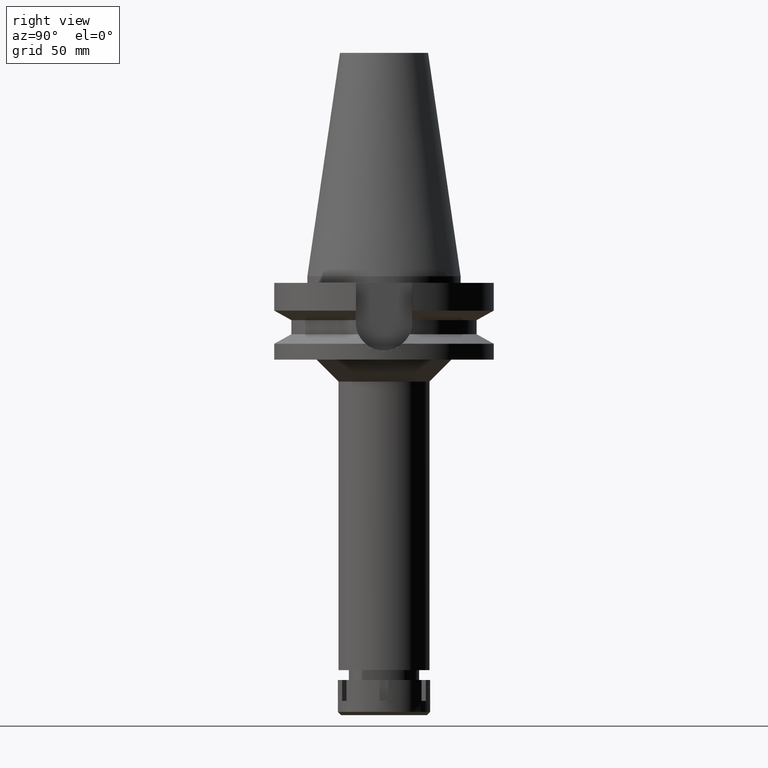
[diagram: clean part render]
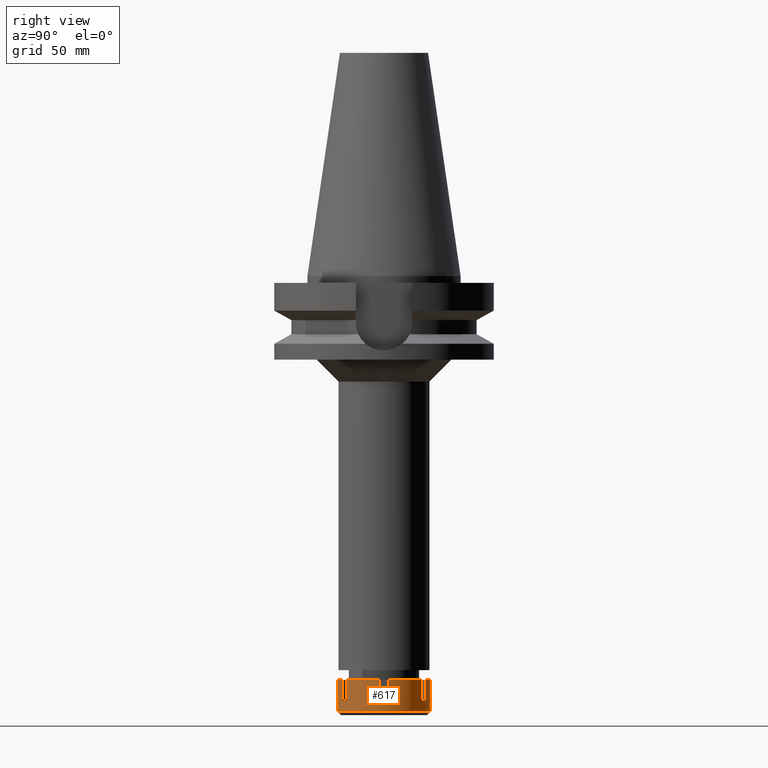
[diagram: same view with one face highlighted and labeled with its STEP entity id]
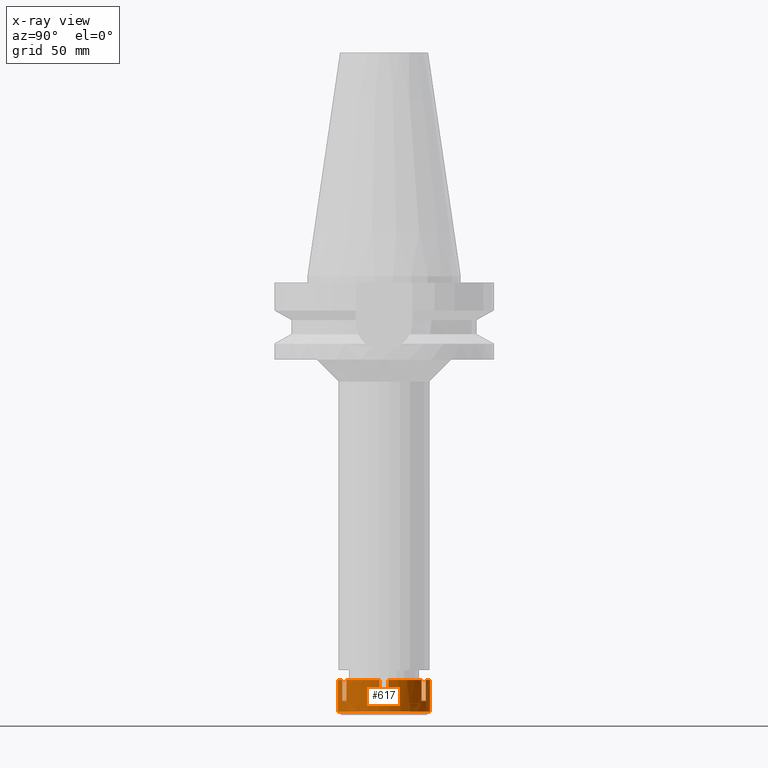
[diagram: x-ray of the same camera — body ghosted, the highlighted face saturated]
A machine part, right view. The second image highlights one B-rep face of the part: STEP entity #617.
The next image is the same camera in x-ray: the body ghosted, the highlighted face saturated — about 0% of this face is hidden behind the body in this view.
In plain terms, the highlighted cylindrical surface (partial cylindrical patch) has radius 21 mm, axis along (0, 0, -1).
Its self-contained STEP definition (entity closure, byte-faithful):
#16 = VERTEX_POINT ( 'NONE', #3208 ) ;
#70 = EDGE_CURVE ( 'NONE', #1454, #3551, #1508, .T. ) ;
#119 = CARTESIAN_POINT ( 'NONE',  ( 0.0000000000000000000, 0.0000000000000000000, -14.50000000000000000 ) ) ;
#198 = CARTESIAN_POINT ( 'NONE',  ( 0.0000000000000000000, 21.00000000000000000, -14.50000000000000000 ) ) ;
#201 = EDGE_CURVE ( 'NONE', #2813, #1130, #2110, .T. ) ;
#214 = CARTESIAN_POINT ( 'NONE',  ( 12.18432328774999895, -17.10386699022999935, 0.0000000000000000000 ) ) ;
#232 = CARTESIAN_POINT ( 'NONE',  ( 0.0000000000000000000, 21.00000000000000000, 0.0000000000000000000 ) ) ;
#287 = VECTOR ( 'NONE', #2916, 1000.000000000000000 ) ;
#316 = CARTESIAN_POINT ( 'NONE',  ( 0.0000000000000000000, 21.00000000000000000, 0.0000000000000000000 ) ) ;
#330 = AXIS2_PLACEMENT_3D ( 'NONE', #1938, #3111, #2530 ) ;
#338 = AXIS2_PLACEMENT_3D ( 'NONE', #497, #423, #1569 ) ;
#340 = EDGE_CURVE ( 'NONE', #1711, #1068, #1155, .T. ) ;
#361 = EDGE_CURVE ( 'NONE', #3112, #3315, #3674, .T. ) ;
#415 = CARTESIAN_POINT ( 'NONE',  ( 20.90454496036999998, -2.000000000000000000, -9.500000000000000000 ) ) ;
#423 = DIRECTION ( 'NONE',  ( 0.0000000000000000000, 0.0000000000000000000, -1.000000000000000000 ) ) ;
#464 = AXIS2_PLACEMENT_3D ( 'NONE', #2307, #2276, #2290 ) ;
#485 = DIRECTION ( 'NONE',  ( 0.0000000000000000000, 0.0000000000000000000, 1.000000000000000000 ) ) ;
#497 = CARTESIAN_POINT ( 'NONE',  ( 0.0000000000000000000, 0.0000000000000000000, -9.500000000000000000 ) ) ;
#502 = LINE ( 'NONE', #2464, #838 ) ;
#522 = AXIS2_PLACEMENT_3D ( 'NONE', #2109, #1542, #3522 ) ;
#586 = VERTEX_POINT ( 'NONE', #415 ) ;
#599 = ORIENTED_EDGE ( 'NONE', *, *, #70, .F. ) ;
#600 = CARTESIAN_POINT ( 'NONE',  ( 12.18432328774999895, -17.10386699022999935, -9.500000000000000000 ) ) ;
#617 = ADVANCED_FACE ( 'NONE', ( #3290 ), #2428, .T. ) ;
#624 = CIRCLE ( 'NONE', #522, 21.00000000000000711 ) ;
#678 = EDGE_CURVE ( 'NONE', #1463, #2628, #1898, .T. ) ;
#702 = CARTESIAN_POINT ( 'NONE',  ( 8.720221672615998898, 19.10386699022999935, -9.500000000000000000 ) ) ;
#734 = CARTESIAN_POINT ( 'NONE',  ( 20.90454496036999998, -2.000000000000000000, 0.0000000000000000000 ) ) ;
#756 = VERTEX_POINT ( 'NONE', #214 ) ;
#811 = CARTESIAN_POINT ( 'NONE',  ( 0.0000000000000000000, -21.00000000000000000, -14.50000000000000000 ) ) ;
#814 = CIRCLE ( 'NONE', #2897, 20.99999999999999645 ) ;
#835 = CIRCLE ( 'NONE', #2317, 21.00000000000000000 ) ;
#838 = VECTOR ( 'NONE', #485, 1000.000000000000000 ) ;
#874 = CIRCLE ( 'NONE', #1480, 21.00000000000000711 ) ;
#926 = ORIENTED_EDGE ( 'NONE', *, *, #3306, .T. ) ;
#977 = ORIENTED_EDGE ( 'NONE', *, *, #201, .T. ) ;
#1001 = DIRECTION ( 'NONE',  ( 0.5802058708454290725, 0.8144698566776411575, 0.0000000000000000000 ) ) ;
#1021 = VECTOR ( 'NONE', #3400, 1000.000000000000000 ) ;
#1027 = DIRECTION ( 'NONE',  ( 0.0000000000000000000, 0.0000000000000000000, -1.000000000000000000 ) ) ;
#1068 = VERTEX_POINT ( 'NONE', #198 ) ;
#1076 = CIRCLE ( 'NONE', #464, 21.00000000000000000 ) ;
#1119 = VECTOR ( 'NONE', #1218, 1000.000000000000000 ) ;
#1125 = DIRECTION ( 'NONE',  ( 0.4152486510768949035, 0.9097079519157886818, 0.0000000000000000000 ) ) ;
#1128 = EDGE_CURVE ( 'NONE', #3112, #586, #1725, .T. ) ;
#1130 = VERTEX_POINT ( 'NONE', #811 ) ;
#1138 = CARTESIAN_POINT ( 'NONE',  ( 20.90454496036999998, 2.000000000000000000, -9.500000000000000000 ) ) ;
#1155 = LINE ( 'NONE', #316, #2607 ) ;
#1173 = CARTESIAN_POINT ( 'NONE',  ( 8.720221672615000585, -19.10386699022999935, 0.0000000000000000000 ) ) ;
#1218 = DIRECTION ( 'NONE',  ( 0.0000000000000000000, 0.0000000000000000000, 1.000000000000000000 ) ) ;
#1221 = CARTESIAN_POINT ( 'NONE',  ( 8.720221672615000585, 19.10386699022999935, 0.0000000000000000000 ) ) ;
#1289 = DIRECTION ( 'NONE',  ( 0.0000000000000000000, 0.0000000000000000000, -1.000000000000000000 ) ) ;
#1389 = VERTEX_POINT ( 'NONE', #600 ) ;
#1454 = VERTEX_POINT ( 'NONE', #2456 ) ;
#1463 = VERTEX_POINT ( 'NONE', #2673 ) ;
#1480 = AXIS2_PLACEMENT_3D ( 'NONE', #2877, #2590, #3184 ) ;
#1508 = LINE ( 'NONE', #1173, #287 ) ;
#1523 = DIRECTION ( 'NONE',  ( 0.0000000000000000000, 0.0000000000000000000, -1.000000000000000000 ) ) ;
#1529 = LINE ( 'NONE', #3191, #1119 ) ;
#1542 = DIRECTION ( 'NONE',  ( 0.0000000000000000000, 0.0000000000000000000, -1.000000000000000000 ) ) ;
#1550 = VECTOR ( 'NONE', #1289, 1000.000000000000000 ) ;
#1569 = DIRECTION ( 'NONE',  ( 0.9954545219222313834, 0.09523809523810303213, 0.0000000000000000000 ) ) ;
#1639 = DIRECTION ( 'NONE',  ( 0.0000000000000000000, 0.0000000000000000000, -1.000000000000000000 ) ) ;
#1646 = ORIENTED_EDGE ( 'NONE', *, *, #340, .F. ) ;
#1711 = VERTEX_POINT ( 'NONE', #232 ) ;
#1725 = CIRCLE ( 'NONE', #338, 20.99999999999999289 ) ;
#1731 = DIRECTION ( 'NONE',  ( 0.0000000000000000000, 0.0000000000000000000, -1.000000000000000000 ) ) ;
#1828 = DIRECTION ( 'NONE',  ( 0.0000000000000000000, 0.0000000000000000000, 1.000000000000000000 ) ) ;
#1849 = ORIENTED_EDGE ( 'NONE', *, *, #3692, .T. ) ;
#1865 = CARTESIAN_POINT ( 'NONE',  ( 0.0000000000000000000, -21.00000000000000000, 0.0000000000000000000 ) ) ;
#1898 = LINE ( 'NONE', #3074, #1967 ) ;
#1908 = EDGE_CURVE ( 'NONE', #1130, #1068, #835, .T. ) ;
#1938 = CARTESIAN_POINT ( 'NONE',  ( 0.0000000000000000000, 0.0000000000000000000, 0.0000000000000000000 ) ) ;
#1967 = VECTOR ( 'NONE', #1639, 1000.000000000000000 ) ;
#1972 = AXIS2_PLACEMENT_3D ( 'NONE', #2271, #2536, #1125 ) ;
#2004 = CARTESIAN_POINT ( 'NONE',  ( 12.18432328774999895, 17.10386699022999935, -9.500000000000000000 ) ) ;
#2021 = ORIENTED_EDGE ( 'NONE', *, *, #678, .F. ) ;
#2109 = CARTESIAN_POINT ( 'NONE',  ( 0.0000000000000000000, 0.0000000000000000000, -9.500000000000000000 ) ) ;
#2110 = LINE ( 'NONE', #1865, #1550 ) ;
#2124 = ORIENTED_EDGE ( 'NONE', *, *, #3070, .T. ) ;
#2156 = DIRECTION ( 'NONE',  ( 0.0000000000000000000, -1.000000000000000000, 0.0000000000000000000 ) ) ;
#2190 = VECTOR ( 'NONE', #1523, 1000.000000000000000 ) ;
#2232 = CARTESIAN_POINT ( 'NONE',  ( 20.90454496036999998, 2.000000000000000000, -9.500000000000000000 ) ) ;
#2233 = EDGE_LOOP ( 'NONE', ( #2021, #926, #3631, #2412, #3102, #2124, #2283, #3065, #599, #3363, #977, #3115, #1646, #1849, #3627, #3463 ) ) ;
#2261 = AXIS2_PLACEMENT_3D ( 'NONE', #3564, #1027, #2156 ) ;
#2270 = VERTEX_POINT ( 'NONE', #1221 ) ;
#2271 = CARTESIAN_POINT ( 'NONE',  ( 0.0000000000000000000, 0.0000000000000000000, -9.500000000000000000 ) ) ;
#2276 = DIRECTION ( 'NONE',  ( 0.0000000000000000000, 0.0000000000000000000, -1.000000000000000000 ) ) ;
#2283 = ORIENTED_EDGE ( 'NONE', *, *, #2373, .F. ) ;
#2290 = DIRECTION ( 'NONE',  ( 0.0000000000000000000, 1.000000000000000000, 0.0000000000000000000 ) ) ;
#2307 = CARTESIAN_POINT ( 'NONE',  ( 0.0000000000000000000, 0.0000000000000000000, 0.0000000000000000000 ) ) ;
#2317 = AXIS2_PLACEMENT_3D ( 'NONE', #119, #1828, #2992 ) ;
#2373 = EDGE_CURVE ( 'NONE', #1389, #756, #502, .T. ) ;
#2412 = ORIENTED_EDGE ( 'NONE', *, *, #1128, .T. ) ;
#2428 = CYLINDRICAL_SURFACE ( 'NONE', #2261, 21.00000000000000000 ) ;
#2429 = LINE ( 'NONE', #734, #2190 ) ;
#2456 = CARTESIAN_POINT ( 'NONE',  ( 8.720221672615000585, -19.10386699022999935, 0.0000000000000000000 ) ) ;
#2464 = CARTESIAN_POINT ( 'NONE',  ( 12.18432328774999895, -17.10386699022999935, -9.500000000000000000 ) ) ;
#2530 = DIRECTION ( 'NONE',  ( 0.9954545219222313834, -0.09523809523810303213, 0.0000000000000000000 ) ) ;
#2536 = DIRECTION ( 'NONE',  ( 0.0000000000000000000, 0.0000000000000000000, -1.000000000000000000 ) ) ;
#2590 = DIRECTION ( 'NONE',  ( 0.0000000000000000000, 0.0000000000000000000, -1.000000000000000000 ) ) ;
#2591 = EDGE_CURVE ( 'NONE', #2995, #2628, #2989, .T. ) ;
#2607 = VECTOR ( 'NONE', #1731, 1000.000000000000000 ) ;
#2628 = VERTEX_POINT ( 'NONE', #2004 ) ;
#2666 = DIRECTION ( 'NONE',  ( 0.0000000000000000000, 0.0000000000000000000, -1.000000000000000000 ) ) ;
#2673 = CARTESIAN_POINT ( 'NONE',  ( 12.18432328774999895, 17.10386699022999935, 0.0000000000000000000 ) ) ;
#2675 = EDGE_CURVE ( 'NONE', #2995, #2270, #1529, .T. ) ;
#2813 = VERTEX_POINT ( 'NONE', #3456 ) ;
#2877 = CARTESIAN_POINT ( 'NONE',  ( 0.0000000000000000000, 0.0000000000000000000, 0.0000000000000000000 ) ) ;
#2897 = AXIS2_PLACEMENT_3D ( 'NONE', #3506, #2666, #1001 ) ;
#2916 = DIRECTION ( 'NONE',  ( 0.0000000000000000000, 0.0000000000000000000, -1.000000000000000000 ) ) ;
#2989 = CIRCLE ( 'NONE', #1972, 21.00000000000000711 ) ;
#2992 = DIRECTION ( 'NONE',  ( 0.0000000000000000000, -1.000000000000000000, 0.0000000000000000000 ) ) ;
#2995 = VERTEX_POINT ( 'NONE', #702 ) ;
#3065 = ORIENTED_EDGE ( 'NONE', *, *, #3286, .T. ) ;
#3070 = EDGE_CURVE ( 'NONE', #16, #756, #3133, .T. ) ;
#3074 = CARTESIAN_POINT ( 'NONE',  ( 12.18432328774999895, 17.10386699022999935, 0.0000000000000000000 ) ) ;
#3102 = ORIENTED_EDGE ( 'NONE', *, *, #3331, .F. ) ;
#3111 = DIRECTION ( 'NONE',  ( 0.0000000000000000000, 0.0000000000000000000, -1.000000000000000000 ) ) ;
#3112 = VERTEX_POINT ( 'NONE', #2232 ) ;
#3115 = ORIENTED_EDGE ( 'NONE', *, *, #1908, .T. ) ;
#3120 = EDGE_CURVE ( 'NONE', #1454, #2813, #874, .T. ) ;
#3133 = CIRCLE ( 'NONE', #330, 20.99999999999999289 ) ;
#3184 = DIRECTION ( 'NONE',  ( 0.4152486510768949035, -0.9097079519157886818, 0.0000000000000000000 ) ) ;
#3191 = CARTESIAN_POINT ( 'NONE',  ( 8.720221672615000585, 19.10386699022999935, -9.500000000000000000 ) ) ;
#3208 = CARTESIAN_POINT ( 'NONE',  ( 20.90454496036999998, -2.000000000000000000, 0.0000000000000000000 ) ) ;
#3286 = EDGE_CURVE ( 'NONE', #1389, #3551, #624, .T. ) ;
#3290 = FACE_OUTER_BOUND ( 'NONE', #2233, .T. ) ;
#3291 = CARTESIAN_POINT ( 'NONE',  ( 20.90454496036999998, 2.000000000000000000, 0.0000000000000000000 ) ) ;
#3306 = EDGE_CURVE ( 'NONE', #1463, #3315, #814, .T. ) ;
#3315 = VERTEX_POINT ( 'NONE', #3291 ) ;
#3331 = EDGE_CURVE ( 'NONE', #16, #586, #2429, .T. ) ;
#3363 = ORIENTED_EDGE ( 'NONE', *, *, #3120, .T. ) ;
#3375 = CARTESIAN_POINT ( 'NONE',  ( 8.720221672615000585, -19.10386699022999935, -9.500000000000000000 ) ) ;
#3400 = DIRECTION ( 'NONE',  ( 0.0000000000000000000, 0.0000000000000000000, 1.000000000000000000 ) ) ;
#3456 = CARTESIAN_POINT ( 'NONE',  ( 0.0000000000000000000, -21.00000000000000000, 0.0000000000000000000 ) ) ;
#3463 = ORIENTED_EDGE ( 'NONE', *, *, #2591, .T. ) ;
#3506 = CARTESIAN_POINT ( 'NONE',  ( 0.0000000000000000000, 0.0000000000000000000, 0.0000000000000000000 ) ) ;
#3522 = DIRECTION ( 'NONE',  ( 0.5802058708453158298, -0.8144698566777217597, 0.0000000000000000000 ) ) ;
#3551 = VERTEX_POINT ( 'NONE', #3375 ) ;
#3564 = CARTESIAN_POINT ( 'NONE',  ( 0.0000000000000000000, 0.0000000000000000000, 0.0000000000000000000 ) ) ;
#3627 = ORIENTED_EDGE ( 'NONE', *, *, #2675, .F. ) ;
#3631 = ORIENTED_EDGE ( 'NONE', *, *, #361, .F. ) ;
#3674 = LINE ( 'NONE', #1138, #1021 ) ;
#3692 = EDGE_CURVE ( 'NONE', #1711, #2270, #1076, .T. ) ;